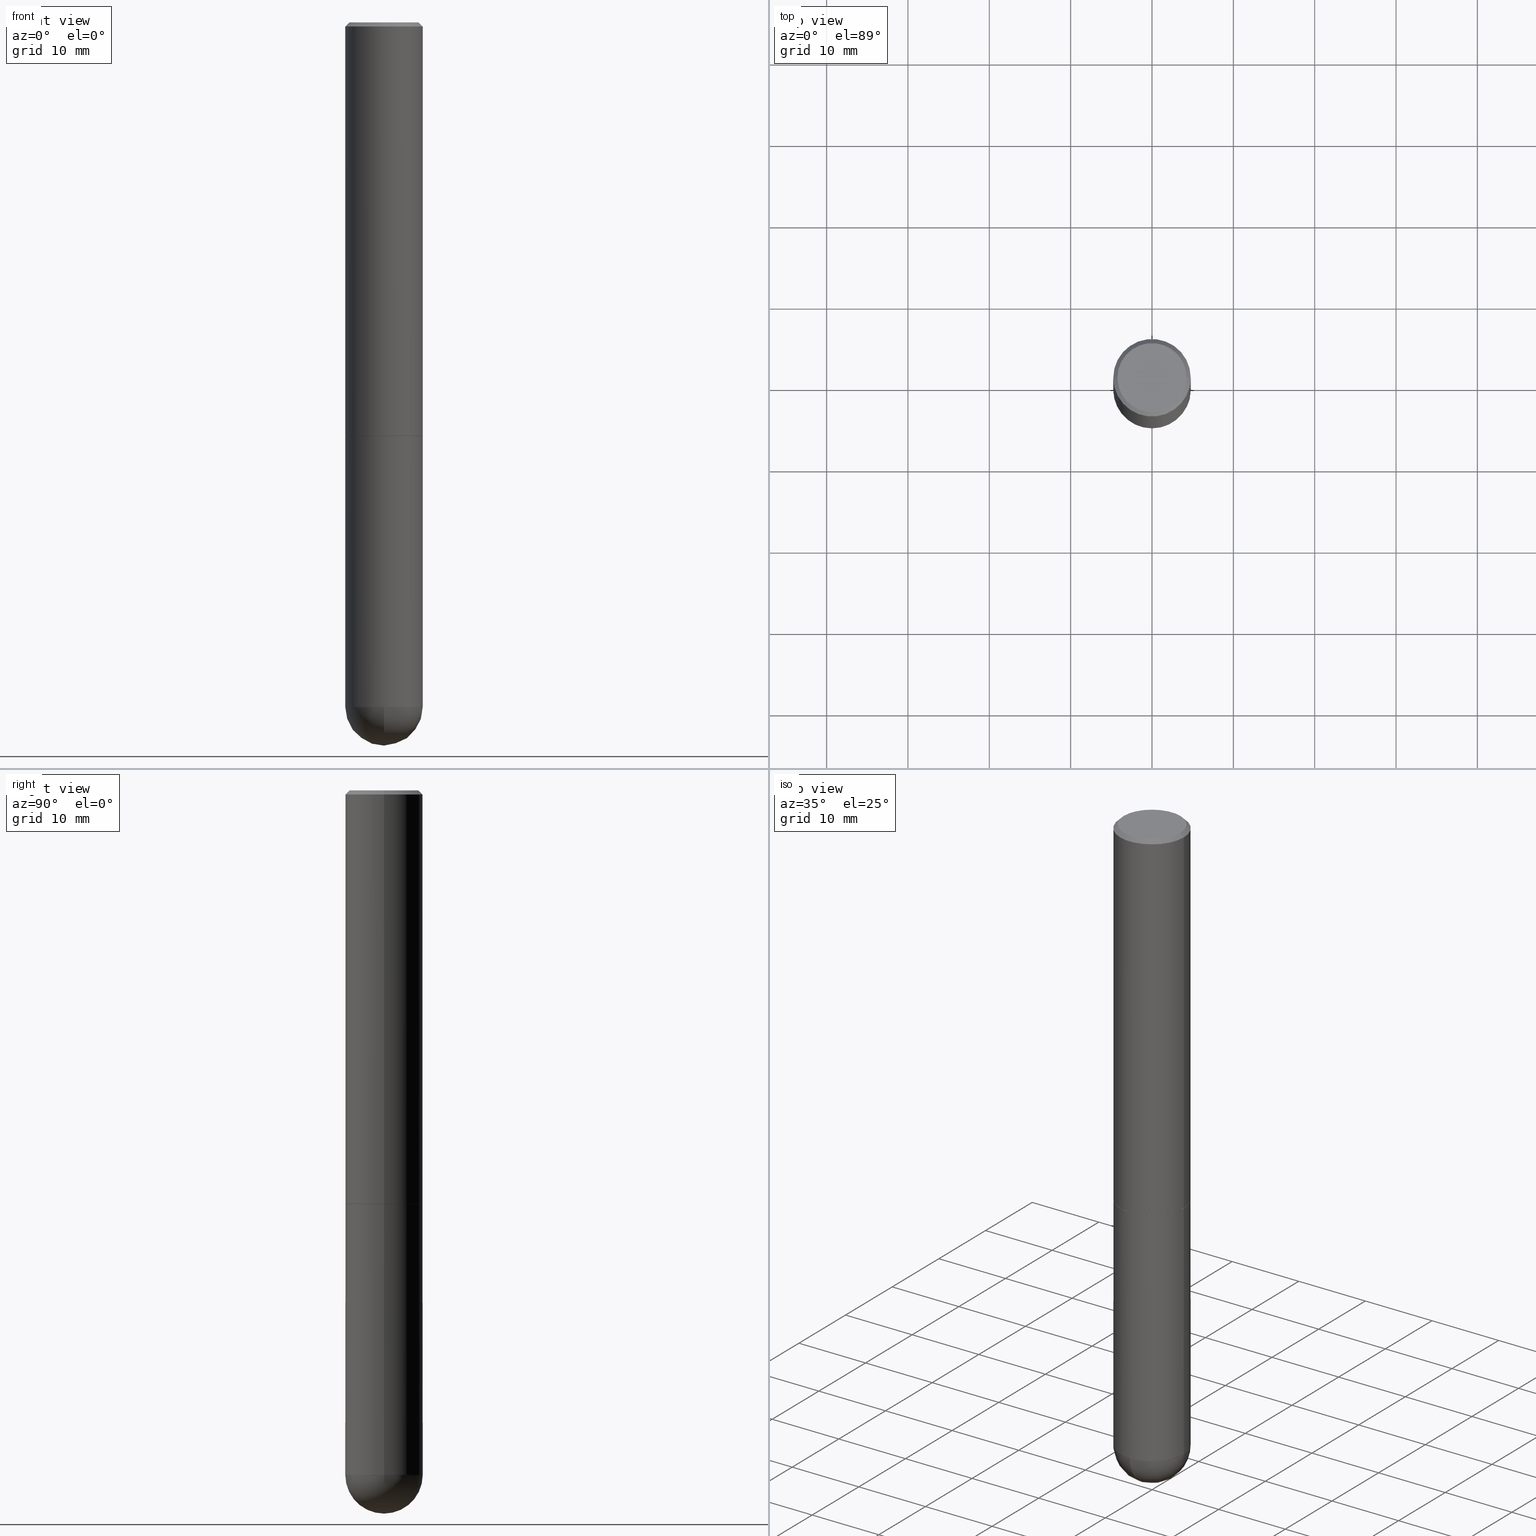
[diagram: canonical four-view strip — front | top / right | iso, engineering-drawing reading convention]
A machine part, canonical four-view strip (front | top / right | iso — engineering-drawing reading convention). The complete STEP part file that produces these views, byte-faithful:
ISO-10303-21;
HEADER;
FILE_DESCRIPTION (( 'STEP AP203' ),
    '1' );
FILE_NAME ('34921.STEP',
    '2024-02-21T18:24:38',
    ( '' ),
    ( '' ),
    'SwSTEP 2.0',
    'SolidWorks 2023',
    '' );
FILE_SCHEMA (( 'CONFIG_CONTROL_DESIGN' ));
ENDSEC;

DATA;
#1 = APPROVAL_PERSON_ORGANIZATION ( #383, #214, #386 ) ;
#2 = CARTESIAN_POINT ( 'NONE',  ( 8.100615420488263856E-29, -1.156553193491791947E-14, -3.312499999999999556 ) ) ;
#3 = VERTEX_POINT ( 'NONE', #144 ) ;
#4 = CARTESIAN_POINT ( 'NONE',  ( 0.1874999999999999722, -1.356173001359025269E-15, -0.02000000000000003858 ) ) ;
#5 = VERTEX_POINT ( 'NONE', #395 ) ;
#6 = EDGE_CURVE ( 'NONE', #238, #364, #166, .T. ) ;
#7 = EDGE_LOOP ( 'NONE', ( #280, #102 ) ) ;
#8 = AXIS2_PLACEMENT_3D ( 'NONE', #118, #32, #339 ) ;
#9 = SECURITY_CLASSIFICATION_LEVEL ( 'unclassified' ) ;
#10 = EDGE_CURVE ( 'NONE', #236, #3, #255, .T. ) ;
#11 = SECURITY_CLASSIFICATION ( '', '', #9 ) ;
#12 = APPROVAL_STATUS ( 'not_yet_approved' ) ;
#13 = CARTESIAN_POINT ( 'NONE',  ( -0.1874999999999999722, 1.332267629550187651E-15, -9.223003294227946589E-30 ) ) ;
#14 = SHAPE_DEFINITION_REPRESENTATION ( #111, #123 ) ;
#15 = ORIENTED_EDGE ( 'NONE', *, *, #6, .F. ) ;
#16 = EDGE_CURVE ( 'NONE', #104, #364, #247, .T. ) ;
#17 = DIRECTION ( 'NONE',  ( 1.000000000000000000, -6.982962677686268288E-15, 0.000000000000000000 ) ) ;
#18 = CIRCLE ( 'NONE', #8, 0.1874999999999999722 ) ;
#19 = CIRCLE ( 'NONE', #130, 0.1875000000000002776 ) ;
#20 = EDGE_LOOP ( 'NONE', ( #384, #135, #35, #304, #79 ) ) ;
#21 = VERTEX_POINT ( 'NONE', #279 ) ;
#22 = CYLINDRICAL_SURFACE ( 'NONE', #226, 0.1874999999999999722 ) ;
#23 = CIRCLE ( 'NONE', #71, 0.1864999999999999991 ) ;
#24 = FACE_OUTER_BOUND ( 'NONE', #199, .T. ) ;
#25 = CARTESIAN_POINT ( 'NONE',  ( 7.769495642574377609E-29, -1.203971430305797135E-14, -3.312499999999999556 ) ) ;
#26 = DESIGN_CONTEXT ( 'detailed design', #217, 'design' ) ;
#27 = DIRECTION ( 'NONE',  ( -2.445468806185136597E-29, 3.491481338843145583E-15, 1.000000000000000000 ) ) ;
#28 = ADVANCED_FACE ( 'NONE', ( #396 ), #251, .T. ) ;
#29 = CARTESIAN_POINT ( 'NONE',  ( 4.890937612370282792E-31, -6.982962677686303935E-17, -0.02000000000000003858 ) ) ;
#30 =( NAMED_UNIT ( * ) SI_UNIT ( $, .STERADIAN. ) SOLID_ANGLE_UNIT ( ) );
#31 = LOCAL_TIME ( 13, 24, 38.00000000000000000, #232 ) ;
#32 = DIRECTION ( 'NONE',  ( -2.445468806185136597E-29, 3.491481338843145583E-15, 1.000000000000000000 ) ) ;
#33 = DIRECTION ( 'NONE',  ( -2.445468806185136877E-29, 3.491481338843145188E-15, 1.000000000000000000 ) ) ;
#34 = EDGE_CURVE ( 'NONE', #309, #293, #227, .T. ) ;
#35 = ORIENTED_EDGE ( 'NONE', *, *, #10, .T. ) ;
#36 = DIRECTION ( 'NONE',  ( -2.445468806185136597E-29, 3.491481338843145583E-15, 1.000000000000000000 ) ) ;
#37 = CARTESIAN_POINT ( 'NONE',  ( 4.890937612370273194E-29, -6.982962677686291165E-15, -2.000000000000000000 ) ) ;
#38 = ORIENTED_EDGE ( 'NONE', *, *, #34, .F. ) ;
#39 = CC_DESIGN_PERSON_AND_ORGANIZATION_ASSIGNMENT ( #105, #354, ( #182 ) ) ;
#40 = VERTEX_POINT ( 'NONE', #276 ) ;
#41 = PERSON_AND_ORGANIZATION_ROLE ( 'creator' ) ;
#42 = EDGE_LOOP ( 'NONE', ( #240, #147, #195, #347 ) ) ;
#43 = VECTOR ( 'NONE', #33, 39.37007874015748143 ) ;
#44 = AXIS2_PLACEMENT_3D ( 'NONE', #2, #371, #90 ) ;
#45 = EDGE_LOOP ( 'NONE', ( #163, #171 ) ) ;
#46 = DIRECTION ( 'NONE',  ( 1.000000000000000000, -6.982962677686263555E-15, 0.000000000000000000 ) ) ;
#47 = ORIENTED_EDGE ( 'NONE', *, *, #96, .F. ) ;
#48 = CARTESIAN_POINT ( 'NONE',  ( 4.890937612370282792E-31, -6.982962677686303935E-17, -0.02000000000000003858 ) ) ;
#49 = ORIENTED_EDGE ( 'NONE', *, *, #50, .F. ) ;
#50 = EDGE_CURVE ( 'NONE', #5, #298, #311, .T. ) ;
#51 = FACE_OUTER_BOUND ( 'NONE', #387, .T. ) ;
#52 = DIRECTION ( 'NONE',  ( -1.000000000000000000, 6.982962677686266711E-15, 0.000000000000000000 ) ) ;
#53 = AXIS2_PLACEMENT_3D ( 'NONE', #363, #278, #334 ) ;
#54 = VECTOR ( 'NONE', #378, 39.37007874015748143 ) ;
#55 = ADVANCED_FACE ( 'NONE', ( #207 ), #80, .T. ) ;
#56 = DIRECTION ( 'NONE',  ( -1.000000000000000000, 6.982962677686265922E-15, -4.876176775795935793E-29 ) ) ;
#57 = CARTESIAN_POINT ( 'NONE',  ( -0.1874999999999999722, -7.941979676751917864E-15, -3.312499999999999556 ) ) ;
#58 = DIRECTION ( 'NONE',  ( 0.000000000000000000, 0.000000000000000000, 1.000000000000000000 ) ) ;
#59 = CARTESIAN_POINT ( 'NONE',  ( -0.1675000000000001488, 1.204561061900881047E-15, -1.664719871139243568E-16 ) ) ;
#60 = ORIENTED_EDGE ( 'NONE', *, *, #159, .F. ) ;
#61 = CARTESIAN_POINT ( 'NONE',  ( -0.1875000000000001110, 1.332267629550188637E-15, -9.223003294227953596E-30 ) ) ;
#62 = ORIENTED_EDGE ( 'NONE', *, *, #16, .T. ) ;
#63 = VECTOR ( 'NONE', #89, 39.37007874015748854 ) ;
#64 = MANIFOLD_SOLID_BREP ( 'Body-Move/Copy2[2]', #234 ) ;
#65 = ORIENTED_EDGE ( 'NONE', *, *, #190, .T. ) ;
#66 = FACE_OUTER_BOUND ( 'NONE', #332, .T. ) ;
#67 = COORDINATED_UNIVERSAL_TIME_OFFSET ( 5, 0, .BEHIND. ) ;
#68 = ORIENTED_EDGE ( 'NONE', *, *, #151, .F. ) ;
#69 = EDGE_CURVE ( 'NONE', #298, #324, #391, .T. ) ;
#70 = ORIENTED_EDGE ( 'NONE', *, *, #82, .T. ) ;
#71 = AXIS2_PLACEMENT_3D ( 'NONE', #160, #289, #400 ) ;
#72 = APPROVAL_ROLE ( '' ) ;
#73 = DIRECTION ( 'NONE',  ( -0.7071067811865232589, 7.493145998870265808E-15, 0.7071067811865715536 ) ) ;
#74 = DATE_AND_TIME ( #275, #250 ) ;
#75 = CARTESIAN_POINT ( 'NONE',  ( 4.888492143564087030E-29, -6.979471196347446580E-15, -1.998999999999999666 ) ) ;
#76 = DIRECTION ( 'NONE',  ( 6.982962677686266711E-15, 1.000000000000000000, 0.000000000000000000 ) ) ;
#77 = CC_DESIGN_DATE_AND_TIME_ASSIGNMENT ( #74, #271, ( #11 ) ) ;
#78 = PRODUCT ( '34921', '34921', '', ( #99 ) ) ;
#79 = ORIENTED_EDGE ( 'NONE', *, *, #398, .F. ) ;
#80 = CONICAL_SURFACE ( 'NONE', #336, 0.1874999999999999722, 0.7853981633974471688 ) ;
#81 = LOCAL_TIME ( 13, 24, 38.00000000000000000, #244 ) ;
#82 = EDGE_CURVE ( 'NONE', #266, #104, #172, .T. ) ;
#83 = DIRECTION ( 'NONE',  ( -2.438088387897960049E-29, 3.491481338843145188E-15, 1.000000000000000000 ) ) ;
#84 = CARTESIAN_POINT ( 'NONE',  ( 0.1864999999999999991, -8.285285217074779370E-15, -2.000000000000000000 ) ) ;
#85 = DIRECTION ( 'NONE',  ( -2.445468806185136597E-29, 3.491481338843145583E-15, 1.000000000000000000 ) ) ;
#86 = ORGANIZATION ( 'UNSPECIFIED', 'UNSPECIFIED', '' ) ;
#87 = DIRECTION ( 'NONE',  ( -2.445468806185136597E-29, 3.491481338843145583E-15, 1.000000000000000000 ) ) ;
#88 = CARTESIAN_POINT ( 'NONE',  ( 1.169646248512450581E-15, 0.1675000000000001488, -6.680591178131854845E-16 ) ) ;
#89 = DIRECTION ( 'NONE',  ( 0.7071067811865232589, -2.468850131082003836E-15, 0.7071067811865715536 ) ) ;
#90 = DIRECTION ( 'NONE',  ( 1.000000000000000000, -6.982962677686263555E-15, 0.000000000000000000 ) ) ;
#91 = APPROVAL ( #12, 'UNSPECIFIED' ) ;
#92 = CARTESIAN_POINT ( 'NONE',  ( 4.888492143564087030E-29, -6.979471196347446580E-15, -1.998999999999999666 ) ) ;
#93 = AXIS2_PLACEMENT_3D ( 'NONE', #29, #85, #319 ) ;
#94 = CYLINDRICAL_SURFACE ( 'NONE', #287, 0.1874999999999999722 ) ;
#95 = ORIENTED_EDGE ( 'NONE', *, *, #294, .T. ) ;
#96 = EDGE_CURVE ( 'NONE', #21, #266, #359, .T. ) ;
#97 = LINE ( 'NONE', #198, #54 ) ;
#98 = ORIENTED_EDGE ( 'NONE', *, *, #96, .T. ) ;
#99 = MECHANICAL_CONTEXT ( 'NONE', #203, 'mechanical' ) ;
#100 = ADVANCED_FACE ( 'NONE', ( #210 ), #376, .T. ) ;
#101 = DIRECTION ( 'NONE',  ( 1.000000000000000000, 0.000000000000000000, 0.000000000000000000 ) ) ;
#102 = ORIENTED_EDGE ( 'NONE', *, *, #113, .T. ) ;
#103 = DATE_AND_TIME ( #239, #81 ) ;
#104 = VERTEX_POINT ( 'NONE', #57 ) ;
#105 = PERSON_AND_ORGANIZATION ( #374, #86 ) ;
#106 = DIRECTION ( 'NONE',  ( 1.000000000000000000, -6.982962677686266711E-15, 4.870844094865822268E-29 ) ) ;
#107 = CALENDAR_DATE ( 2024, 21, 2 ) ;
#108 = DIRECTION ( 'NONE',  ( 2.445468806185136597E-29, -3.491481338843145583E-15, -1.000000000000000000 ) ) ;
#109 = CC_DESIGN_PERSON_AND_ORGANIZATION_ASSIGNMENT ( #331, #41, ( #385 ) ) ;
#110 = DIRECTION ( 'NONE',  ( 1.000000000000000000, -6.982962677686265922E-15, 4.883557194083112340E-29 ) ) ;
#111 = PRODUCT_DEFINITION_SHAPE ( 'NONE', 'NONE',  #385 ) ;
#112 = DIRECTION ( 'NONE',  ( -2.445468806185136597E-29, 3.491481338843145583E-15, 1.000000000000000000 ) ) ;
#113 = EDGE_CURVE ( 'NONE', #293, #309, #281, .T. ) ;
#114 = CC_DESIGN_APPROVAL ( #214, ( #11 ) ) ;
#115 = EDGE_CURVE ( 'NONE', #3, #238, #153, .T. ) ;
#116 = DIRECTION ( 'NONE',  ( -1.000000000000000000, 7.105427357601001070E-15, -4.926315508542082329E-29 ) ) ;
#117 = EDGE_CURVE ( 'NONE', #300, #324, #286, .T. ) ;
#118 = CARTESIAN_POINT ( 'NONE',  ( 8.100615420488263856E-29, -1.156553193491791947E-14, -3.312499999999999556 ) ) ;
#119 = CARTESIAN_POINT ( 'NONE',  ( 0.1675000000000001488, -1.252653207992879077E-15, -1.664719871139075689E-16 ) ) ;
#120 = DIRECTION ( 'NONE',  ( -2.445468806185136597E-29, 3.491481338843145583E-15, 1.000000000000000000 ) ) ;
#121 = DIRECTION ( 'NONE',  ( -2.445468806185136597E-29, 3.491481338843145583E-15, 1.000000000000000000 ) ) ;
#122 = VECTOR ( 'NONE', #73, 39.37007874015748854 ) ;
#123 = ADVANCED_BREP_SHAPE_REPRESENTATION ( '34921', ( #335, #64, #124 ), #283 ) ;
#124 = AXIS2_PLACEMENT_3D ( 'NONE', #194, #58, #101 ) ;
#125 = CARTESIAN_POINT ( 'NONE',  ( 4.890937612370273194E-29, -6.982962677686291165E-15, -2.000000000000000000 ) ) ;
#126 = CARTESIAN_POINT ( 'NONE',  ( 4.890937612370272633E-29, -6.982962677686290376E-15, -1.999999999999999778 ) ) ;
#127 = FACE_OUTER_BOUND ( 'NONE', #137, .T. ) ;
#128 = EDGE_LOOP ( 'NONE', ( #262, #38, #268, #179 ) ) ;
#129 = AXIS2_PLACEMENT_3D ( 'NONE', #125, #83, #215 ) ;
#130 = AXIS2_PLACEMENT_3D ( 'NONE', #92, #121, #131 ) ;
#131 = DIRECTION ( 'NONE',  ( 1.000000000000000000, -6.982962677686268288E-15, 0.000000000000000000 ) ) ;
#132 = ORIENTED_EDGE ( 'NONE', *, *, #375, .F. ) ;
#133 = ADVANCED_FACE ( 'NONE', ( #51 ), #180, .T. ) ;
#134 = COORDINATED_UNIVERSAL_TIME_OFFSET ( 5, 0, .BEHIND. ) ;
#135 = ORIENTED_EDGE ( 'NONE', *, *, #338, .T. ) ;
#136 = CALENDAR_DATE ( 2024, 21, 2 ) ;
#137 = EDGE_LOOP ( 'NONE', ( #49, #272, #184, #337 ) ) ;
#138 = CONICAL_SURFACE ( 'NONE', #407, 0.1864999999999999991, 0.7853981633974141952 ) ;
#139 = APPLICATION_PROTOCOL_DEFINITION ( 'international standard', 'config_control_design', 1994, #217 ) ;
#140 = ORIENTED_EDGE ( 'NONE', *, *, #256, .F. ) ;
#141 = CARTESIAN_POINT ( 'NONE',  ( 7.769495642574377609E-29, -1.203971430305797135E-14, -3.312499999999999556 ) ) ;
#142 = ADVANCED_FACE ( 'NONE', ( #24 ), #22, .T. ) ;
#143 = APPROVAL_STATUS ( 'not_yet_approved' ) ;
#144 = CARTESIAN_POINT ( 'NONE',  ( 0.1874999999999999722, -1.058355280836828072E-14, -3.312499999999999556 ) ) ;
#145 = CARTESIAN_POINT ( 'NONE',  ( 4.890937612370282792E-31, -6.982962677686303935E-17, -0.02000000000000003858 ) ) ;
#146 = DIRECTION ( 'NONE',  ( -2.445468806185136877E-29, 3.491481338843145188E-15, 1.000000000000000000 ) ) ;
#147 = ORIENTED_EDGE ( 'NONE', *, *, #204, .T. ) ;
#148 = EDGE_CURVE ( 'NONE', #3, #266, #18, .T. ) ;
#149 = AXIS2_PLACEMENT_3D ( 'NONE', #343, #222, #405 ) ;
#150 = CARTESIAN_POINT ( 'NONE',  ( 0.000000000000000000, 0.000000000000000000, 0.000000000000000000 ) ) ;
#151 = EDGE_CURVE ( 'NONE', #21, #236, #249, .T. ) ;
#152 = DIRECTION ( 'NONE',  ( -1.000000000000000000, 6.982962677686266711E-15, -4.883557194083112340E-29 ) ) ;
#153 = LINE ( 'NONE', #368, #269 ) ;
#154 = DIRECTION ( 'NONE',  ( 1.000000000000000000, -6.982962677686266711E-15, 4.876176775795935793E-29 ) ) ;
#155 = CC_DESIGN_PERSON_AND_ORGANIZATION_ASSIGNMENT ( #308, #267, ( #182 ) ) ;
#156 = CARTESIAN_POINT ( 'NONE',  ( 0.000000000000000000, 0.000000000000000000, 0.000000000000000000 ) ) ;
#157 = DIRECTION ( 'NONE',  ( -2.445468806185136597E-29, 3.491481338843145583E-15, 1.000000000000000000 ) ) ;
#158 = CC_DESIGN_SECURITY_CLASSIFICATION ( #11, ( #182 ) ) ;
#159 = EDGE_CURVE ( 'NONE', #40, #353, #314, .T. ) ;
#160 = CARTESIAN_POINT ( 'NONE',  ( 4.890937612370273194E-29, -6.982962677686291165E-15, -2.000000000000000000 ) ) ;
#161 = DIRECTION ( 'NONE',  ( 1.000000000000000000, -6.982962677686266711E-15, 4.876176775795935793E-29 ) ) ;
#162 = LINE ( 'NONE', #61, #43 ) ;
#163 = ORIENTED_EDGE ( 'NONE', *, *, #190, .F. ) ;
#164 = PLANE ( 'NONE',  #277 ) ;
#165 = ORIENTED_EDGE ( 'NONE', *, *, #117, .F. ) ;
#166 = CIRCLE ( 'NONE', #211, 0.1875000000000000278 ) ;
#167 = ADVANCED_FACE ( 'NONE', ( #366 ), #220, .F. ) ;
#168 = AXIS2_PLACEMENT_3D ( 'NONE', #216, #316, #285 ) ;
#169 = FACE_OUTER_BOUND ( 'NONE', #7, .T. ) ;
#170 = PERSON_AND_ORGANIZATION_ROLE ( 'classification_officer' ) ;
#171 = ORIENTED_EDGE ( 'NONE', *, *, #356, .F. ) ;
#172 = CIRCLE ( 'NONE', #53, 0.1874999999999999722 ) ;
#173 = PERSON_AND_ORGANIZATION_ROLE ( 'design_owner' ) ;
#174 = ADVANCED_FACE ( 'NONE', ( #284 ), #257, .T. ) ;
#175 = DIRECTION ( 'NONE',  ( 6.982962677686266711E-15, 1.000000000000000000, -2.913971193241876428E-15 ) ) ;
#176 = CYLINDRICAL_SURFACE ( 'NONE', #200, 0.1875000000000001110 ) ;
#177 = PERSON_AND_ORGANIZATION ( #374, #86 ) ;
#178 = ORIENTED_EDGE ( 'NONE', *, *, #151, .T. ) ;
#179 = ORIENTED_EDGE ( 'NONE', *, *, #256, .T. ) ;
#180 = CONICAL_SURFACE ( 'NONE', #365, 0.1864999999999999991, 0.7853981633974141952 ) ;
#181 = UNCERTAINTY_MEASURE_WITH_UNIT (LENGTH_MEASURE( 1.000000000000000082E-05 ), #288, 'distance_accuracy_value', 'NONE');
#182 = PRODUCT_DEFINITION_FORMATION_WITH_SPECIFIED_SOURCE ( 'ANY', '', #78, .NOT_KNOWN. ) ;
#183 = CARTESIAN_POINT ( 'NONE',  ( 4.890937612370272633E-29, -6.982962677686290376E-15, -1.999999999999999778 ) ) ;
#184 = ORIENTED_EDGE ( 'NONE', *, *, #117, .T. ) ;
#185 = CARTESIAN_POINT ( 'NONE',  ( 4.890937612370273194E-29, -6.982962677686291165E-15, -2.000000000000000000 ) ) ;
#186 = AXIS2_PLACEMENT_3D ( 'NONE', #75, #209, #17 ) ;
#187 = CC_DESIGN_APPROVAL ( #188, ( #385 ) ) ;
#188 = APPROVAL ( #273, 'UNSPECIFIED' ) ;
#189 = DIRECTION ( 'NONE',  ( -2.445468806185136877E-29, 3.491481338843145188E-15, 1.000000000000000000 ) ) ;
#190 = EDGE_CURVE ( 'NONE', #300, #5, #23, .T. ) ;
#191 = CARTESIAN_POINT ( 'NONE',  ( 4.071020515907357082E-45, -5.812338364483744108E-31, -1.664719871139160491E-16 ) ) ;
#192 = CARTESIAN_POINT ( 'NONE',  ( -0.1875000000000000278, -7.941979676751916286E-15, -1.999999999999999778 ) ) ;
#193 = APPROVAL_PERSON_ORGANIZATION ( #352, #91, #206 ) ;
#194 = CARTESIAN_POINT ( 'NONE',  ( 0.000000000000000000, 0.000000000000000000, 0.000000000000000000 ) ) ;
#195 = ORIENTED_EDGE ( 'NONE', *, *, #159, .T. ) ;
#196 = ADVANCED_FACE ( 'NONE', ( #218 ), #408, .F. ) ;
#197 = EDGE_LOOP ( 'NONE', ( #47, #178, #213, #380 ) ) ;
#198 = CARTESIAN_POINT ( 'NONE',  ( 0.1875000000000001110, -1.309305502066175797E-15, 9.142831454617385217E-30 ) ) ;
#199 = EDGE_LOOP ( 'NONE', ( #70, #62, #15, #307, #231 ) ) ;
#200 = AXIS2_PLACEMENT_3D ( 'NONE', #252, #27, #154 ) ;
#201 = CARTESIAN_POINT ( 'NONE',  ( -1.332267629550109160E-15, -0.1875000000000119349, -3.312499999999999112 ) ) ;
#202 = CALENDAR_DATE ( 2024, 21, 2 ) ;
#203 = APPLICATION_CONTEXT ( 'configuration controlled 3d designs of mechanical parts and assemblies' ) ;
#204 = EDGE_CURVE ( 'NONE', #293, #40, #341, .T. ) ;
#205 = ORIENTED_EDGE ( 'NONE', *, *, #398, .T. ) ;
#206 = APPROVAL_ROLE ( '' ) ;
#207 = FACE_OUTER_BOUND ( 'NONE', #42, .T. ) ;
#208 = PERSON_AND_ORGANIZATION ( #374, #86 ) ;
#209 = DIRECTION ( 'NONE',  ( -2.445468806185136597E-29, 3.491481338843145583E-15, 1.000000000000000000 ) ) ;
#210 = FACE_OUTER_BOUND ( 'NONE', #128, .T. ) ;
#211 = AXIS2_PLACEMENT_3D ( 'NONE', #183, #112, #312 ) ;
#212 = CIRCLE ( 'NONE', #360, 0.1864999999999999991 ) ;
#213 = ORIENTED_EDGE ( 'NONE', *, *, #338, .F. ) ;
#214 = APPROVAL ( #143, 'UNSPECIFIED' ) ;
#215 = DIRECTION ( 'NONE',  ( 1.000000000000000000, -6.982962677686265922E-15, 4.876176775795935793E-29 ) ) ;
#216 = CARTESIAN_POINT ( 'NONE',  ( 4.890937612370282792E-31, -6.982962677686303935E-17, -0.02000000000000003858 ) ) ;
#217 = APPLICATION_CONTEXT ( 'configuration controlled 3d designs of mechanical parts and assemblies' ) ;
#218 = FACE_OUTER_BOUND ( 'NONE', #45, .T. ) ;
#219 = AXIS2_PLACEMENT_3D ( 'NONE', #333, #390, #46 ) ;
#220 = PLANE ( 'NONE',  #149 ) ;
#221 = DIRECTION ( 'NONE',  ( 6.982962677686266711E-15, 1.000000000000000000, -2.913971193241876428E-15 ) ) ;
#222 = DIRECTION ( 'NONE',  ( 2.438088387897960049E-29, -3.491481338843145188E-15, -1.000000000000000000 ) ) ;
#223 = CARTESIAN_POINT ( 'NONE',  ( 0.1864999999999999991, -8.285285217074779370E-15, -2.000000000000000000 ) ) ;
#224 = DIRECTION ( 'NONE',  ( -7.105427357601001070E-15, -1.000000000000000000, 0.000000000000000000 ) ) ;
#225 = APPLICATION_PROTOCOL_DEFINITION ( 'international standard', 'config_control_design', 1994, #203 ) ;
#226 = AXIS2_PLACEMENT_3D ( 'NONE', #150, #87, #402 ) ;
#227 = CIRCLE ( 'NONE', #346, 0.1675000000000001488 ) ;
#228 = DIRECTION ( 'NONE',  ( 1.000000000000000000, -6.982962677686266711E-15, 0.000000000000000000 ) ) ;
#229 = ORIENTED_EDGE ( 'NONE', *, *, #375, .T. ) ;
#230 = CARTESIAN_POINT ( 'NONE',  ( -0.1874999999999999722, 1.239475875289311710E-15, -0.02000000000000003858 ) ) ;
#231 = ORIENTED_EDGE ( 'NONE', *, *, #148, .T. ) ;
#232 = COORDINATED_UNIVERSAL_TIME_OFFSET ( 5, 0, .BEHIND. ) ;
#233 = EDGE_LOOP ( 'NONE', ( #229, #95, #60, #248 ) ) ;
#234 = CLOSED_SHELL ( 'NONE', ( #133, #174, #55, #100, #243, #393, #196, #404 ) ) ;
#235 = DATE_AND_TIME ( #107, #342 ) ;
#236 = VERTEX_POINT ( 'NONE', #201 ) ;
#237 = APPROVAL_DATE_TIME ( #103, #214 ) ;
#238 = VERTEX_POINT ( 'NONE', #355 ) ;
#239 = CALENDAR_DATE ( 2024, 21, 2 ) ;
#240 = ORIENTED_EDGE ( 'NONE', *, *, #113, .F. ) ;
#241 = VECTOR ( 'NONE', #350, 39.37007874015748143 ) ;
#242 = CIRCLE ( 'NONE', #44, 0.1874999999999999722 ) ;
#243 = ADVANCED_FACE ( 'NONE', ( #66 ), #176, .T. ) ;
#244 = COORDINATED_UNIVERSAL_TIME_OFFSET ( 5, 0, .BEHIND. ) ;
#245 = DIMENSIONAL_EXPONENTS ( 1.000000000000000000, 0.000000000000000000, 0.000000000000000000, 0.000000000000000000, 0.000000000000000000, 0.000000000000000000, 0.000000000000000000 ) ;
#246 = DIRECTION ( 'NONE',  ( -1.000000000000000000, 6.982962677686266711E-15, 0.000000000000000000 ) ) ;
#247 = LINE ( 'NONE', #13, #330 ) ;
#248 = ORIENTED_EDGE ( 'NONE', *, *, #367, .F. ) ;
#249 = CIRCLE ( 'NONE', #412, 0.1875000000000002776 ) ;
#250 = LOCAL_TIME ( 13, 24, 38.00000000000000000, #303 ) ;
#251 = SPHERICAL_SURFACE ( 'NONE', #305, 0.1875000000000002776 ) ;
#252 = CARTESIAN_POINT ( 'NONE',  ( 0.000000000000000000, 0.000000000000000000, 0.000000000000000000 ) ) ;
#253 = ADVANCED_FACE ( 'NONE', ( #401 ), #340, .T. ) ;
#254 = DIRECTION ( 'NONE',  ( 1.000000000000000000, -6.982962677686266711E-15, 4.870844094865822268E-29 ) ) ;
#255 = CIRCLE ( 'NONE', #219, 0.1874999999999999722 ) ;
#256 = EDGE_CURVE ( 'NONE', #353, #40, #297, .T. ) ;
#257 = CYLINDRICAL_SURFACE ( 'NONE', #261, 0.1875000000000001110 ) ;
#258 = DIRECTION ( 'NONE',  ( -2.445468806185136597E-29, 3.491481338843145583E-15, 1.000000000000000000 ) ) ;
#259 = PRODUCT_RELATED_PRODUCT_CATEGORY ( 'detail', '', ( #78 ) ) ;
#260 = LINE ( 'NONE', #230, #270 ) ;
#261 = AXIS2_PLACEMENT_3D ( 'NONE', #156, #372, #345 ) ;
#262 = ORIENTED_EDGE ( 'NONE', *, *, #204, .F. ) ;
#263 = LENGTH_MEASURE_WITH_UNIT ( LENGTH_MEASURE( 0.02539999999999999897 ), #292 );
#264 = ORIENTED_EDGE ( 'NONE', *, *, #69, .T. ) ;
#265 = CC_DESIGN_PERSON_AND_ORGANIZATION_ASSIGNMENT ( #177, #173, ( #78 ) ) ;
#266 = VERTEX_POINT ( 'NONE', #403 ) ;
#267 = PERSON_AND_ORGANIZATION_ROLE ( 'design_supplier' ) ;
#268 = ORIENTED_EDGE ( 'NONE', *, *, #361, .T. ) ;
#269 = VECTOR ( 'NONE', #189, 39.37007874015748143 ) ;
#270 = VECTOR ( 'NONE', #325, 39.37007874015748143 ) ;
#271 = DATE_TIME_ROLE ( 'classification_date' ) ;
#272 = ORIENTED_EDGE ( 'NONE', *, *, #356, .T. ) ;
#273 = APPROVAL_STATUS ( 'not_yet_approved' ) ;
#274 = CARTESIAN_POINT ( 'NONE',  ( 4.071020515907357082E-45, -5.812338364483744108E-31, -1.664719871139160491E-16 ) ) ;
#275 = CALENDAR_DATE ( 2024, 21, 2 ) ;
#276 = CARTESIAN_POINT ( 'NONE',  ( 0.1874999999999999722, -1.356173001359025269E-15, -0.02000000000000003858 ) ) ;
#277 = AXIS2_PLACEMENT_3D ( 'NONE', #88, #348, #56 ) ;
#278 = DIRECTION ( 'NONE',  ( -2.445468806185136597E-29, 3.491481338843145583E-15, 1.000000000000000000 ) ) ;
#279 = CARTESIAN_POINT ( 'NONE',  ( 8.236038227695147558E-29, -1.268288599034905401E-14, -3.500000000000000000 ) ) ;
#280 = ORIENTED_EDGE ( 'NONE', *, *, #34, .T. ) ;
#281 = CIRCLE ( 'NONE', #295, 0.1675000000000001488 ) ;
#282 = CIRCLE ( 'NONE', #377, 0.1875000000000000278 ) ;
#283 =( GEOMETRIC_REPRESENTATION_CONTEXT ( 3 ) GLOBAL_UNCERTAINTY_ASSIGNED_CONTEXT ( ( #181 ) ) GLOBAL_UNIT_ASSIGNED_CONTEXT ( ( #288, #321, #30 ) ) REPRESENTATION_CONTEXT ( 'NONE', 'WORKASPACE' ) );
#284 = FACE_OUTER_BOUND ( 'NONE', #233, .T. ) ;
#285 = DIRECTION ( 'NONE',  ( 1.000000000000000000, -6.982962677686266711E-15, 0.000000000000000000 ) ) ;
#286 = LINE ( 'NONE', #84, #63 ) ;
#287 = AXIS2_PLACEMENT_3D ( 'NONE', #323, #36, #161 ) ;
#288 =( CONVERSION_BASED_UNIT ( 'INCH', #263 ) LENGTH_UNIT ( ) NAMED_UNIT ( #245 ) );
#289 = DIRECTION ( 'NONE',  ( -2.445468806185136597E-29, 3.491481338843145583E-15, 1.000000000000000000 ) ) ;
#290 = DIRECTION ( 'NONE',  ( -2.445468806185136597E-29, 3.491481338843145583E-15, 1.000000000000000000 ) ) ;
#291 = CC_DESIGN_PERSON_AND_ORGANIZATION_ASSIGNMENT ( #328, #170, ( #11 ) ) ;
#292 =( LENGTH_UNIT ( ) NAMED_UNIT ( * ) SI_UNIT ( $, .METRE. ) );
#293 = VERTEX_POINT ( 'NONE', #119 ) ;
#294 = EDGE_CURVE ( 'NONE', #298, #353, #162, .T. ) ;
#295 = AXIS2_PLACEMENT_3D ( 'NONE', #191, #120, #254 ) ;
#296 = CARTESIAN_POINT ( 'NONE',  ( -0.1875000000000002776, -2.192382782011961963E-15, -1.998999999999999666 ) ) ;
#297 = CIRCLE ( 'NONE', #168, 0.1874999999999999722 ) ;
#298 = VERTEX_POINT ( 'NONE', #296 ) ;
#299 = DATE_AND_TIME ( #202, #392 ) ;
#300 = VERTEX_POINT ( 'NONE', #223 ) ;
#301 = ADVANCED_FACE ( 'NONE', ( #409 ), #94, .T. ) ;
#302 = ORIENTED_EDGE ( 'NONE', *, *, #294, .F. ) ;
#303 = COORDINATED_UNIVERSAL_TIME_OFFSET ( 5, 0, .BEHIND. ) ;
#304 = ORIENTED_EDGE ( 'NONE', *, *, #115, .T. ) ;
#305 = AXIS2_PLACEMENT_3D ( 'NONE', #141, #329, #175 ) ;
#306 = DATE_TIME_ROLE ( 'creation_date' ) ;
#307 = ORIENTED_EDGE ( 'NONE', *, *, #115, .F. ) ;
#308 = PERSON_AND_ORGANIZATION ( #374, #86 ) ;
#309 = VERTEX_POINT ( 'NONE', #59 ) ;
#310 = ORIENTED_EDGE ( 'NONE', *, *, #367, .T. ) ;
#311 = LINE ( 'NONE', #358, #122 ) ;
#312 = DIRECTION ( 'NONE',  ( 1.000000000000000000, -6.982962677686266711E-15, 0.000000000000000000 ) ) ;
#313 = DIRECTION ( 'NONE',  ( -2.445468806185136597E-29, 3.491481338843145583E-15, 1.000000000000000000 ) ) ;
#314 = CIRCLE ( 'NONE', #93, 0.1874999999999999722 ) ;
#315 = DIRECTION ( 'NONE',  ( 1.000000000000000000, -6.982962677686268288E-15, 0.000000000000000000 ) ) ;
#316 = DIRECTION ( 'NONE',  ( -2.445468806185136597E-29, 3.491481338843145583E-15, 1.000000000000000000 ) ) ;
#317 = CARTESIAN_POINT ( 'NONE',  ( 7.769495642574377609E-29, -1.203971430305797135E-14, -3.312499999999999556 ) ) ;
#318 = CC_DESIGN_DATE_AND_TIME_ASSIGNMENT ( #235, #306, ( #385 ) ) ;
#319 = DIRECTION ( 'NONE',  ( 1.000000000000000000, -6.982962677686266711E-15, 0.000000000000000000 ) ) ;
#320 = APPROVAL_PERSON_ORGANIZATION ( #208, #188, #72 ) ;
#321 =( NAMED_UNIT ( * ) PLANE_ANGLE_UNIT ( ) SI_UNIT ( $, .RADIAN. ) );
#322 = EDGE_LOOP ( 'NONE', ( #411, #205 ) ) ;
#323 = CARTESIAN_POINT ( 'NONE',  ( 0.000000000000000000, 0.000000000000000000, 0.000000000000000000 ) ) ;
#324 = VERTEX_POINT ( 'NONE', #410 ) ;
#325 = DIRECTION ( 'NONE',  ( -0.7071067811865466846, 2.468850131082247989E-15, -0.7071067811865483499 ) ) ;
#326 = CC_DESIGN_APPROVAL ( #91, ( #182 ) ) ;
#327 = ORIENTED_EDGE ( 'NONE', *, *, #10, .F. ) ;
#328 = PERSON_AND_ORGANIZATION ( #374, #86 ) ;
#329 = DIRECTION ( 'NONE',  ( -1.000000000000000000, 6.982962677686266711E-15, -4.883557194083112340E-29 ) ) ;
#330 = VECTOR ( 'NONE', #146, 39.37007874015748143 ) ;
#331 = PERSON_AND_ORGANIZATION ( #374, #86 ) ;
#332 = EDGE_LOOP ( 'NONE', ( #302, #264, #310, #140 ) ) ;
#333 = CARTESIAN_POINT ( 'NONE',  ( 8.100615420488263856E-29, -1.156553193491791947E-14, -3.312499999999999556 ) ) ;
#334 = DIRECTION ( 'NONE',  ( 1.000000000000000000, -6.982962677686263555E-15, 0.000000000000000000 ) ) ;
#335 = MANIFOLD_SOLID_BREP ( 'Body-Move/Copy2[1]', #382 ) ;
#336 = AXIS2_PLACEMENT_3D ( 'NONE', #145, #108, #246 ) ;
#337 = ORIENTED_EDGE ( 'NONE', *, *, #69, .F. ) ;
#338 = EDGE_CURVE ( 'NONE', #104, #236, #242, .T. ) ;
#339 = DIRECTION ( 'NONE',  ( 1.000000000000000000, -6.982962677686263555E-15, 0.000000000000000000 ) ) ;
#340 = SPHERICAL_SURFACE ( 'NONE', #369, 0.1875000000000002776 ) ;
#341 = LINE ( 'NONE', #4, #241 ) ;
#342 = LOCAL_TIME ( 13, 24, 38.00000000000000000, #134 ) ;
#343 = CARTESIAN_POINT ( 'NONE',  ( 1.309305502066224115E-15, 0.1874999999999930611, -2.000000000000000444 ) ) ;
#344 = DIRECTION ( 'NONE',  ( 1.000000000000000000, -6.982962677686268288E-15, 0.000000000000000000 ) ) ;
#345 = DIRECTION ( 'NONE',  ( 1.000000000000000000, -6.982962677686266711E-15, 4.876176775795935793E-29 ) ) ;
#346 = AXIS2_PLACEMENT_3D ( 'NONE', #274, #389, #106 ) ;
#347 = ORIENTED_EDGE ( 'NONE', *, *, #361, .F. ) ;
#348 = DIRECTION ( 'NONE',  ( 2.438088387897960049E-29, -3.491481338843145188E-15, -1.000000000000000000 ) ) ;
#349 = EDGE_LOOP ( 'NONE', ( #68, #98, #381, #327 ) ) ;
#350 = DIRECTION ( 'NONE',  ( 0.7071067811865466846, -7.319954787623252890E-15, -0.7071067811865483499 ) ) ;
#351 = APPROVAL_DATE_TIME ( #299, #91 ) ;
#352 = PERSON_AND_ORGANIZATION ( #374, #86 ) ;
#353 = VERTEX_POINT ( 'NONE', #406 ) ;
#354 = PERSON_AND_ORGANIZATION_ROLE ( 'creator' ) ;
#355 = CARTESIAN_POINT ( 'NONE',  ( 0.1875000000000000278, -8.292268179752465385E-15, -1.999999999999999778 ) ) ;
#356 = EDGE_CURVE ( 'NONE', #5, #300, #212, .T. ) ;
#357 = APPROVAL_DATE_TIME ( #388, #188 ) ;
#358 = CARTESIAN_POINT ( 'NONE',  ( -0.1864999999999999991, -5.657800475493703536E-15, -2.000000000000000000 ) ) ;
#359 = CIRCLE ( 'NONE', #397, 0.1875000000000002776 ) ;
#360 = AXIS2_PLACEMENT_3D ( 'NONE', #379, #290, #344 ) ;
#361 = EDGE_CURVE ( 'NONE', #309, #353, #260, .T. ) ;
#362 = ORIENTED_EDGE ( 'NONE', *, *, #50, .T. ) ;
#363 = CARTESIAN_POINT ( 'NONE',  ( 8.100615420488263856E-29, -1.156553193491791947E-14, -3.312499999999999556 ) ) ;
#364 = VERTEX_POINT ( 'NONE', #192 ) ;
#365 = AXIS2_PLACEMENT_3D ( 'NONE', #185, #313, #315 ) ;
#366 = FACE_OUTER_BOUND ( 'NONE', #322, .T. ) ;
#367 = EDGE_CURVE ( 'NONE', #324, #40, #97, .T. ) ;
#368 = CARTESIAN_POINT ( 'NONE',  ( 0.1874999999999999722, -1.309305502066174811E-15, 9.142831454617378210E-30 ) ) ;
#369 = AXIS2_PLACEMENT_3D ( 'NONE', #25, #152, #221 ) ;
#370 = DIRECTION ( 'NONE',  ( 2.445468806185136597E-29, -3.491481338843145583E-15, -1.000000000000000000 ) ) ;
#371 = DIRECTION ( 'NONE',  ( -2.445468806185136597E-29, 3.491481338843145583E-15, 1.000000000000000000 ) ) ;
#372 = DIRECTION ( 'NONE',  ( -2.445468806185136597E-29, 3.491481338843145583E-15, 1.000000000000000000 ) ) ;
#373 = DIRECTION ( 'NONE',  ( 1.000000000000000000, -6.982962677686268288E-15, 0.000000000000000000 ) ) ;
#374 = PERSON ( 'UNSPECIFIED', 'UNSPECIFIED', 'UNSPECIFIED', ('UNSPECIFIED'), ('UNSPECIFIED'), ('UNSPECIFIED') ) ;
#375 = EDGE_CURVE ( 'NONE', #324, #298, #19, .T. ) ;
#376 = CONICAL_SURFACE ( 'NONE', #399, 0.1874999999999999722, 0.7853981633974471688 ) ;
#377 = AXIS2_PLACEMENT_3D ( 'NONE', #126, #157, #228 ) ;
#378 = DIRECTION ( 'NONE',  ( -2.445468806185136877E-29, 3.491481338843145188E-15, 1.000000000000000000 ) ) ;
#379 = CARTESIAN_POINT ( 'NONE',  ( 4.890937612370273194E-29, -6.982962677686291165E-15, -2.000000000000000000 ) ) ;
#380 = ORIENTED_EDGE ( 'NONE', *, *, #82, .F. ) ;
#381 = ORIENTED_EDGE ( 'NONE', *, *, #148, .F. ) ;
#382 = CLOSED_SHELL ( 'NONE', ( #142, #253, #28, #167, #301 ) ) ;
#383 = PERSON_AND_ORGANIZATION ( #374, #86 ) ;
#384 = ORIENTED_EDGE ( 'NONE', *, *, #16, .F. ) ;
#385 = PRODUCT_DEFINITION ( 'UNKNOWN', '', #182, #26 ) ;
#386 = APPROVAL_ROLE ( '' ) ;
#387 = EDGE_LOOP ( 'NONE', ( #65, #362, #132, #165 ) ) ;
#388 = DATE_AND_TIME ( #136, #31 ) ;
#389 = DIRECTION ( 'NONE',  ( -2.445468806185136597E-29, 3.491481338843145583E-15, 1.000000000000000000 ) ) ;
#390 = DIRECTION ( 'NONE',  ( -2.445468806185136597E-29, 3.491481338843145583E-15, 1.000000000000000000 ) ) ;
#391 = CIRCLE ( 'NONE', #186, 0.1875000000000002776 ) ;
#392 = LOCAL_TIME ( 13, 24, 38.00000000000000000, #67 ) ;
#393 = ADVANCED_FACE ( 'NONE', ( #127 ), #138, .T. ) ;
#394 = CARTESIAN_POINT ( 'NONE',  ( 7.769495642574377609E-29, -1.203971430305797135E-14, -3.312499999999999556 ) ) ;
#395 = CARTESIAN_POINT ( 'NONE',  ( -0.1864999999999999991, -5.652502021145481134E-15, -2.000000000000000000 ) ) ;
#396 = FACE_OUTER_BOUND ( 'NONE', #349, .T. ) ;
#397 = AXIS2_PLACEMENT_3D ( 'NONE', #394, #110, #76 ) ;
#398 = EDGE_CURVE ( 'NONE', #364, #238, #282, .T. ) ;
#399 = AXIS2_PLACEMENT_3D ( 'NONE', #48, #370, #52 ) ;
#400 = DIRECTION ( 'NONE',  ( 1.000000000000000000, -6.982962677686268288E-15, 0.000000000000000000 ) ) ;
#401 = FACE_OUTER_BOUND ( 'NONE', #197, .T. ) ;
#402 = DIRECTION ( 'NONE',  ( 1.000000000000000000, -6.982962677686266711E-15, 4.876176775795935793E-29 ) ) ;
#403 = CARTESIAN_POINT ( 'NONE',  ( 1.309305502066255275E-15, 0.1874999999999883149, -3.312500000000000444 ) ) ;
#404 = ADVANCED_FACE ( 'NONE', ( #169 ), #164, .F. ) ;
#405 = DIRECTION ( 'NONE',  ( -1.000000000000000000, 6.982962677686265922E-15, -4.876176775795935793E-29 ) ) ;
#406 = CARTESIAN_POINT ( 'NONE',  ( -0.1874999999999999722, 1.239475875289311710E-15, -0.02000000000000003858 ) ) ;
#407 = AXIS2_PLACEMENT_3D ( 'NONE', #37, #258, #373 ) ;
#408 = PLANE ( 'NONE',  #129 ) ;
#409 = FACE_OUTER_BOUND ( 'NONE', #20, .T. ) ;
#410 = CARTESIAN_POINT ( 'NONE',  ( 0.1875000000000002776, -8.288776698413623955E-15, -1.998999999999999666 ) ) ;
#411 = ORIENTED_EDGE ( 'NONE', *, *, #6, .T. ) ;
#412 = AXIS2_PLACEMENT_3D ( 'NONE', #317, #116, #224 ) ;
ENDSEC;
END-ISO-10303-21;
